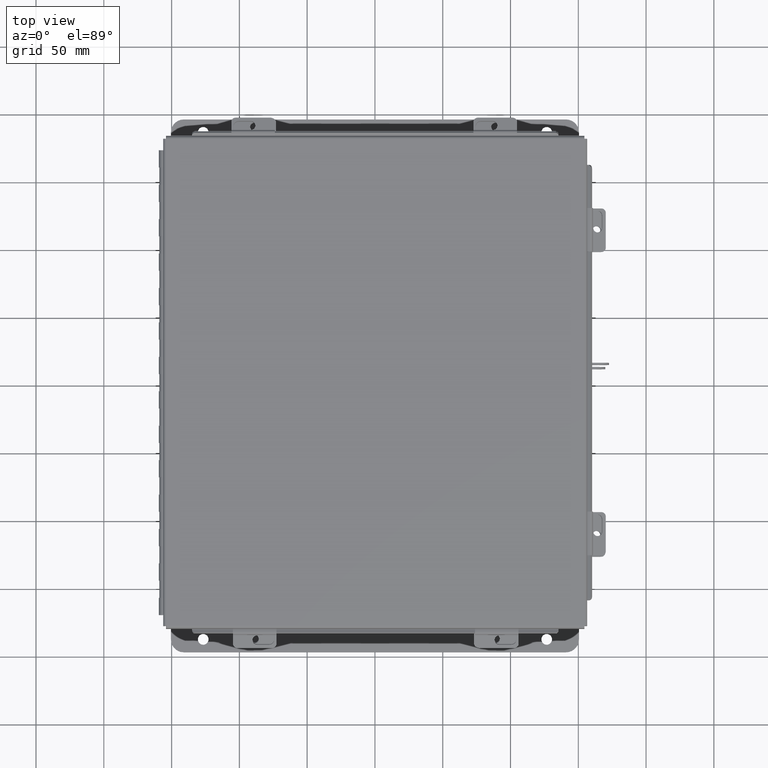
[diagram: clean part render]
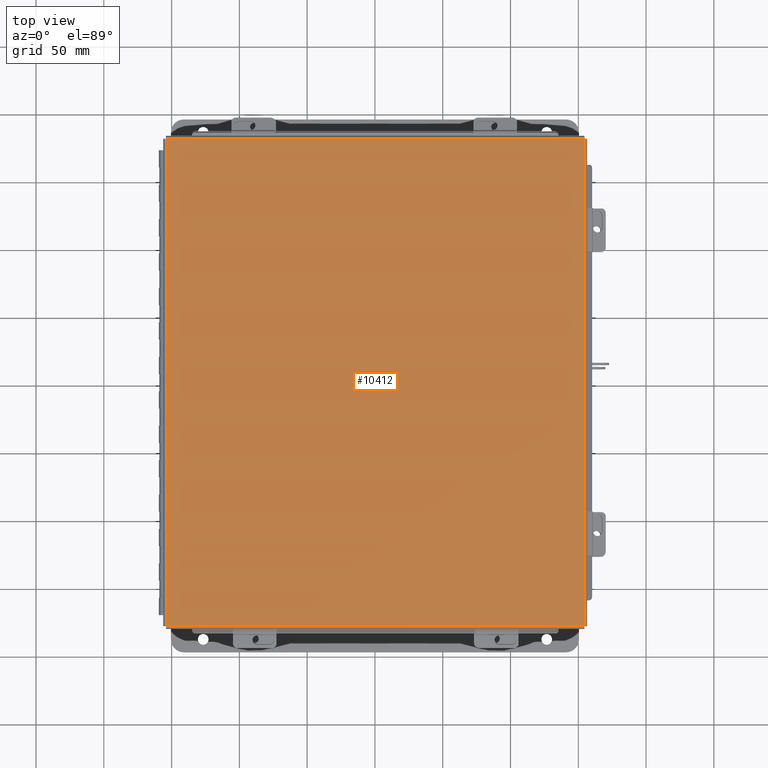
[diagram: same view with one face highlighted and labeled with its STEP entity id]
A machine part, top view. The second image highlights one B-rep face of the part: STEP entity #10412.
In plain terms, the highlighted planar face has unit normal (-0, 0, 1).
Its self-contained STEP definition (entity closure, byte-faithful):
#652 = VECTOR ( 'NONE', #5983, 39.37007874015748100 ) ;
#1118 = DIRECTION ( 'NONE',  ( -0.0000000000000000000, 1.000000000000000000, 8.208677865577646300E-017 ) ) ;
#1520 = CARTESIAN_POINT ( 'NONE',  ( -6.068550000000000100, 7.068549999999999200, -0.07469999999999993300 ) ) ;
#2006 = EDGE_CURVE ( 'NONE', #6962, #9595, #6278, .T. ) ;
#2501 = VECTOR ( 'NONE', #13199, 39.37007874015748100 ) ;
#2970 = PLANE ( 'NONE',  #3698 ) ;
#2987 = CARTESIAN_POINT ( 'NONE',  ( 6.068550000000000100, -7.068550000000001000, -0.07469999999999993300 ) ) ;
#3698 = AXIS2_PLACEMENT_3D ( 'NONE', #17566, #13192, #4449 ) ;
#4090 = DIRECTION ( 'NONE',  ( -1.000000000000000000, 0.0000000000000000000, 0.0000000000000000000 ) ) ;
#4431 = EDGE_CURVE ( 'NONE', #14307, #6962, #8017, .T. ) ;
#4449 = DIRECTION ( 'NONE',  ( -1.000000000000000000, 0.0000000000000000000, -0.0000000000000000000 ) ) ;
#4524 = CARTESIAN_POINT ( 'NONE',  ( 6.068550000000000100, 7.074478932188133800, -0.07469999999999880900 ) ) ;
#5874 = EDGE_CURVE ( 'NONE', #9474, #14307, #8398, .T. ) ;
#5983 = DIRECTION ( 'NONE',  ( -0.0000000000000000000, -1.000000000000000000, -8.208677865577646300E-017 ) ) ;
#6278 = LINE ( 'NONE', #11343, #9685 ) ;
#6962 = VERTEX_POINT ( 'NONE', #13382 ) ;
#7551 = VECTOR ( 'NONE', #4090, 39.37007874015748100 ) ;
#8017 = LINE ( 'NONE', #12825, #7551 ) ;
#8398 = LINE ( 'NONE', #4524, #652 ) ;
#9402 = ORIENTED_EDGE ( 'NONE', *, *, #5874, .T. ) ;
#9474 = VERTEX_POINT ( 'NONE', #18796 ) ;
#9595 = VERTEX_POINT ( 'NONE', #1520 ) ;
#9685 = VECTOR ( 'NONE', #1118, 39.37007874015748100 ) ;
#10168 = FACE_OUTER_BOUND ( 'NONE', #13879, .T. ) ;
#10199 = ORIENTED_EDGE ( 'NONE', *, *, #16156, .T. ) ;
#10412 = ADVANCED_FACE ( 'NONE', ( #10168 ), #2970, .T. ) ;
#11343 = CARTESIAN_POINT ( 'NONE',  ( -6.068550000000000100, -7.074478932188136500, -0.07470000000000107100 ) ) ;
#12644 = ORIENTED_EDGE ( 'NONE', *, *, #4431, .T. ) ;
#12825 = CARTESIAN_POINT ( 'NONE',  ( 6.074478932188137400, -7.068550000000001000, -0.07469999999999993300 ) ) ;
#13192 = DIRECTION ( 'NONE',  ( 0.0000000000000000000, 0.0000000000000000000, -1.000000000000000000 ) ) ;
#13199 = DIRECTION ( 'NONE',  ( 1.000000000000000000, 0.0000000000000000000, 0.0000000000000000000 ) ) ;
#13382 = CARTESIAN_POINT ( 'NONE',  ( -6.068550000000000100, -7.068550000000001000, -0.07470000000000107100 ) ) ;
#13879 = EDGE_LOOP ( 'NONE', ( #10199, #9402, #12644, #15869 ) ) ;
#14307 = VERTEX_POINT ( 'NONE', #2987 ) ;
#14684 = CARTESIAN_POINT ( 'NONE',  ( -6.074478932188137400, 7.068549999999999200, -0.07469999999999993300 ) ) ;
#15869 = ORIENTED_EDGE ( 'NONE', *, *, #2006, .T. ) ;
#16156 = EDGE_CURVE ( 'NONE', #9595, #9474, #18531, .T. ) ;
#17566 = CARTESIAN_POINT ( 'NONE',  ( 0.0000000000000000000, 0.0000000000000000000, -0.07470000000000000300 ) ) ;
#18531 = LINE ( 'NONE', #14684, #2501 ) ;
#18796 = CARTESIAN_POINT ( 'NONE',  ( 6.068550000000000100, 7.068549999999999200, -0.07469999999999880900 ) ) ;